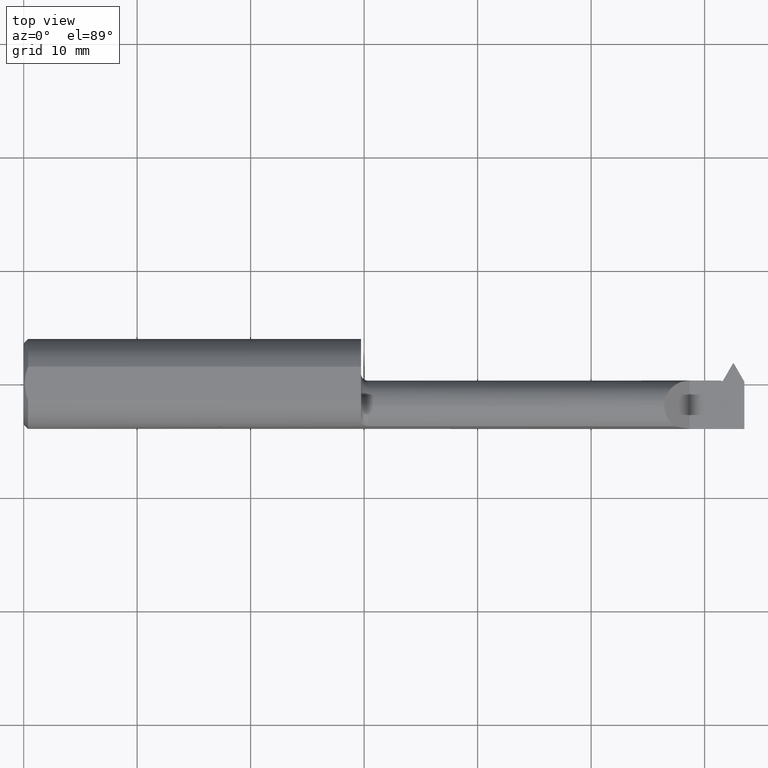
[diagram: clean part render]
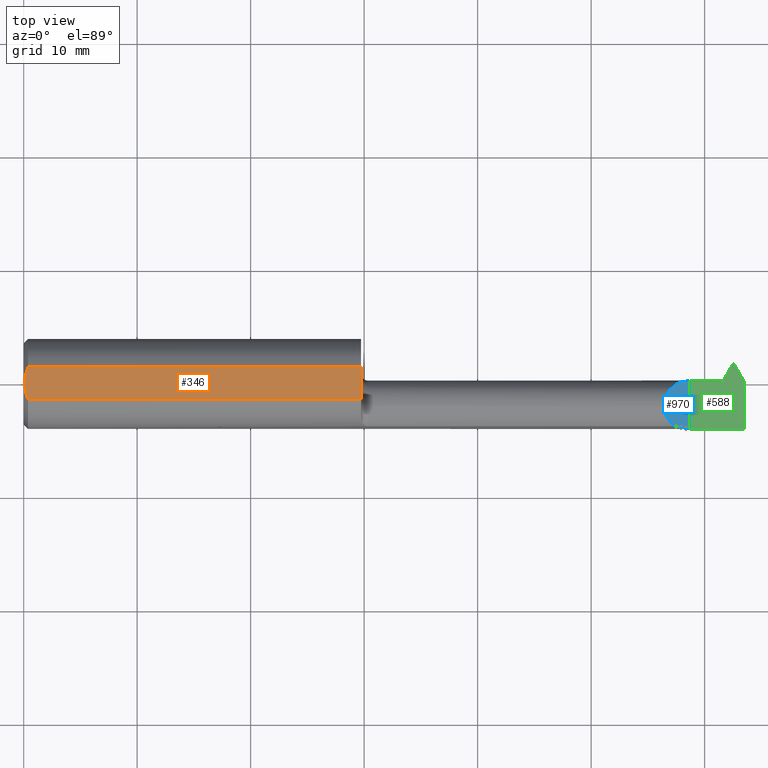
[diagram: same view with three faces highlighted in distinct colors, each labeled with its STEP entity id]
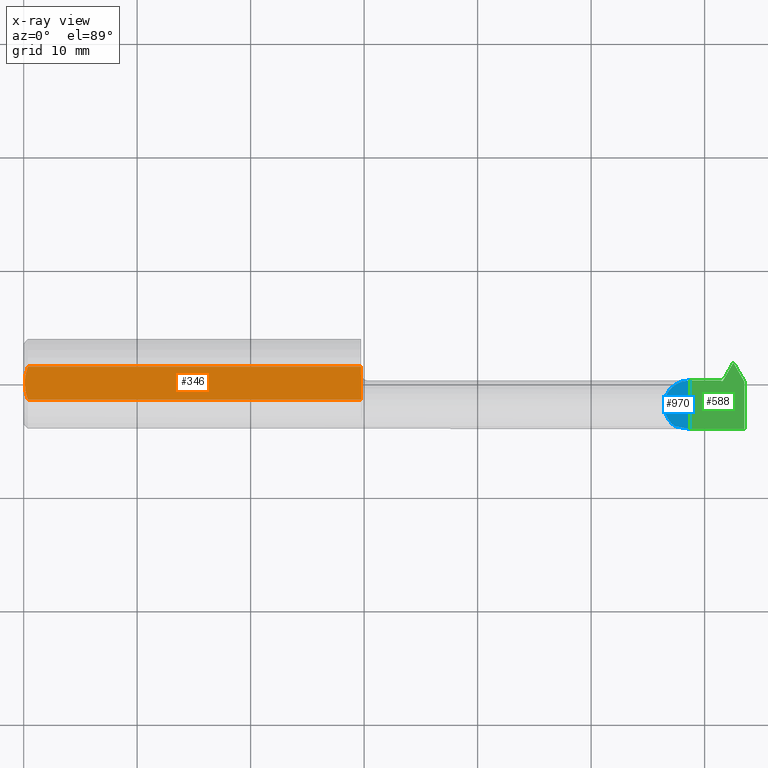
[diagram: x-ray of the same camera — body ghosted, the three highlighted faces saturated]
A machine part, top view with three faces highlighted in distinct colors.
The next image is the same camera in x-ray (body ghosted, the three faces saturated) — at least one of them is partly hidden behind the body in this view.
Their STEP definitions:

[orange] entity #346 — the highlighted planar face has unit normal (-0, 0, -1).
#8 = VERTEX_POINT ( 'NONE', #541 ) ;
#14 = EDGE_CURVE ( 'NONE', #8, #159, #742, .T. ) ;
#89 = ORIENTED_EDGE ( 'NONE', *, *, #14, .T. ) ;
#115 = VERTEX_POINT ( 'NONE', #795 ) ;
#135 = ORIENTED_EDGE ( 'NONE', *, *, #863, .F. ) ;
#138 = DIRECTION ( 'NONE',  ( 1.000000000000000000, 0.000000000000000000, 0.000000000000000000 ) ) ;
#154 = CARTESIAN_POINT ( 'NONE',  ( 0.003999999999999637526, 1.884449684559922719E-17, 0.1450999999999999512 ) ) ;
#159 = VERTEX_POINT ( 'NONE', #571 ) ;
#164 = EDGE_CURVE ( 'NONE', #911, #8, #662, .T. ) ;
#180 = VECTOR ( 'NONE', #504, 39.37007874015748143 ) ;
#197 = EDGE_CURVE ( 'NONE', #796, #115, #580, .T. ) ;
#233 = CARTESIAN_POINT ( 'NONE',  ( 0.01158831187866349310, 0.04830813087846574927, 0.1450999999999999235 ) ) ;
#253 = CARTESIAN_POINT ( 'NONE',  ( 0.000000000000000000, 0.1749999999999999889, 0.1450999999999999512 ) ) ;
#273 = CARTESIAN_POINT ( 'NONE',  ( 0.003999999999999592423, 0.009855731042683129120, 0.1450999999999999790 ) ) ;
#275 = VECTOR ( 'NONE', #725, 39.37007874015748143 ) ;
#296 = LINE ( 'NONE', #664, #180 ) ;
#315 = CARTESIAN_POINT ( 'NONE',  ( 0.005011318927232567486, -0.01959047621504285061, 0.1450999999999999512 ) ) ;
#325 = FACE_OUTER_BOUND ( 'NONE', #822, .T. ) ;
#346 = ADVANCED_FACE ( 'NONE', ( #325 ), #466, .F. ) ;
#365 = CARTESIAN_POINT ( 'NONE',  ( 0.01499999999999970281, 0.05756040305626781983, 0.1450999999999999512 ) ) ;
#381 = CARTESIAN_POINT ( 'NONE',  ( 0.003999999999999590689, -0.009851916903761231276, 0.1450999999999999235 ) ) ;
#402 = CARTESIAN_POINT ( 'NONE',  ( 1.170000000000000151, 0.05756040305626781289, 0.1450999999999999512 ) ) ;
#426 = ORIENTED_EDGE ( 'NONE', *, *, #197, .F. ) ;
#456 = CARTESIAN_POINT ( 'NONE',  ( 0.01499999999999970975, -0.05756040305626781983, 0.1450999999999999512 ) ) ;
#461 = CARTESIAN_POINT ( 'NONE',  ( 0.008818052469296599680, -0.03886761757380381710, 0.1450999999999999512 ) ) ;
#466 = PLANE ( 'NONE',  #720 ) ;
#467 = VECTOR ( 'NONE', #138, 39.37007874015748143 ) ;
#504 = DIRECTION ( 'NONE',  ( -1.000000000000000000, -0.000000000000000000, -0.000000000000000000 ) ) ;
#541 = CARTESIAN_POINT ( 'NONE',  ( 0.003999999999999637526, 1.884449684559922719E-17, 0.1450999999999999512 ) ) ;
#554 = DIRECTION ( 'NONE',  ( -0.000000000000000000, 0.000000000000000000, -1.000000000000000000 ) ) ;
#571 = CARTESIAN_POINT ( 'NONE',  ( 0.01499999999999970975, -0.05756040305626781983, 0.1450999999999999512 ) ) ;
#580 = LINE ( 'NONE', #880, #275 ) ;
#584 = LINE ( 'NONE', #737, #467 ) ;
#597 = ORIENTED_EDGE ( 'NONE', *, *, #937, .F. ) ;
#655 = CARTESIAN_POINT ( 'NONE',  ( 0.003999999999999637526, 1.884449684559922719E-17, 0.1450999999999999512 ) ) ;
#660 = CARTESIAN_POINT ( 'NONE',  ( 0.005030132703184393185, 0.01970541148932063516, 0.1450999999999999512 ) ) ;
#662 = B_SPLINE_CURVE_WITH_KNOTS ( 'NONE', 3,
 ( #688, #233, #884, #660, #273, #655 ),
 .UNSPECIFIED., .F., .F.,
 ( 4, 2, 4 ),
 ( 0.003161694502929457244, 0.003901142131335591512, 0.004640589759741725780 ),
 .UNSPECIFIED. ) ;
#664 = CARTESIAN_POINT ( 'NONE',  ( 2.500000000000000000, -0.05756040305626781983, 0.1450999999999999512 ) ) ;
#688 = CARTESIAN_POINT ( 'NONE',  ( 0.01499999999999970281, 0.05756040305626781983, 0.1450999999999999512 ) ) ;
#720 = AXIS2_PLACEMENT_3D ( 'NONE', #253, #554, #925 ) ;
#725 = DIRECTION ( 'NONE',  ( 0.000000000000000000, -1.000000000000000000, 0.000000000000000000 ) ) ;
#737 = CARTESIAN_POINT ( 'NONE',  ( 2.500000000000000000, 0.05756040305626781983, 0.1450999999999999512 ) ) ;
#742 = B_SPLINE_CURVE_WITH_KNOTS ( 'NONE', 3,
 ( #154, #381, #315, #461, #985, #456 ),
 .UNSPECIFIED., .F., .F.,
 ( 4, 2, 4 ),
 ( 0.004640589759741725780, 0.005379751224090827816, 0.006118912688439928985 ),
 .UNSPECIFIED. ) ;
#795 = CARTESIAN_POINT ( 'NONE',  ( 1.170000000000000151, -0.05756040305626783371, 0.1450999999999999512 ) ) ;
#796 = VERTEX_POINT ( 'NONE', #402 ) ;
#822 = EDGE_LOOP ( 'NONE', ( #426, #597, #902, #89, #135 ) ) ;
#863 = EDGE_CURVE ( 'NONE', #115, #159, #296, .T. ) ;
#880 = CARTESIAN_POINT ( 'NONE',  ( 1.170000000000000151, 0.1749999999999999889, 0.1450999999999999512 ) ) ;
#884 = CARTESIAN_POINT ( 'NONE',  ( 0.008823987512428013366, 0.03887788046871690911, 0.1450999999999999512 ) ) ;
#902 = ORIENTED_EDGE ( 'NONE', *, *, #164, .T. ) ;
#911 = VERTEX_POINT ( 'NONE', #365 ) ;
#925 = DIRECTION ( 'NONE',  ( -1.000000000000000000, 0.000000000000000000, 0.000000000000000000 ) ) ;
#937 = EDGE_CURVE ( 'NONE', #911, #796, #584, .T. ) ;
#985 = CARTESIAN_POINT ( 'NONE',  ( 0.01161840624095520323, -0.04838974479540041063, 0.1450999999999999790 ) ) ;

[blue] entity #970 — the highlighted planar face has unit normal (-0.7071, 0, -0.7071).
#11 = CARTESIAN_POINT ( 'NONE',  ( 2.165000000000000480, 0.1749999999999999889, 0.1450999999999999512 ) ) ;
#60 = ORIENTED_EDGE ( 'NONE', *, *, #738, .F. ) ;
#94 = VERTEX_POINT ( 'NONE', #179 ) ;
#118 = CARTESIAN_POINT ( 'NONE',  ( 2.222100000000000186, -0.02459722810174531579, 0.08800000000000000877 ) ) ;
#120 = CARTESIAN_POINT ( 'NONE',  ( 2.222100000000000186, -0.07609999999999990383, 0.08799999999999999489 ) ) ;
#172 = CARTESIAN_POINT ( 'NONE',  ( 2.310000000000000053, 0.01189994318180000350, 9.999999999973052634E-05 ) ) ;
#175 = CARTESIAN_POINT ( 'NONE',  ( 2.310000000000000053, 0.1749999999999999889, 9.999999999973052634E-05 ) ) ;
#179 = CARTESIAN_POINT ( 'NONE',  ( 2.258341905890882462, -0.1472695137976346991, 0.05175809410911749731 ) ) ;
#213 = PLANE ( 'NONE',  #734 ) ;
#239 = CARTESIAN_POINT ( 'NONE',  ( 2.258341905890882462, -0.1472695137976346991, 0.05175809410911749731 ) ) ;
#243 =( BOUNDED_CURVE ( )  B_SPLINE_CURVE ( 3, ( #120, #281, #730, #310 ),
 .UNSPECIFIED., .F., .T. ) 
 B_SPLINE_CURVE_WITH_KNOTS ( ( 4, 4 ),
 ( 0.000000000000000000, 0.9420143062005867929 ),
 .UNSPECIFIED. ) 
 CURVE ( )  GEOMETRIC_REPRESENTATION_ITEM ( )  RATIONAL_B_SPLINE_CURVE ( ( 1.000000000000000000, 0.9274078068410991360, 0.9274078068410991360, 1.000000000000000000 ) ) 
 REPRESENTATION_ITEM ( '' )  );
#254 = EDGE_CURVE ( 'NONE', #951, #94, #243, .T. ) ;
#271 =( BOUNDED_CURVE ( )  B_SPLINE_CURVE ( 3, ( #564, #867, #118, #359 ),
 .UNSPECIFIED., .F., .T. ) 
 B_SPLINE_CURVE_WITH_KNOTS ( ( 4, 4 ),
 ( 4.713525344265619310, 6.283185307179586232 ),
 .UNSPECIFIED. ) 
 CURVE ( )  GEOMETRIC_REPRESENTATION_ITEM ( )  RATIONAL_B_SPLINE_CURVE ( ( 1.000000000000000000, 0.8050056215533928361, 0.8050056215533928361, 1.000000000000000000 ) ) 
 REPRESENTATION_ITEM ( '' )  );
#274 = ORIENTED_EDGE ( 'NONE', *, *, #437, .T. ) ;
#281 = CARTESIAN_POINT ( 'NONE',  ( 2.222100000000000186, -0.1048058126387024641, 0.08800000000000002265 ) ) ;
#310 = CARTESIAN_POINT ( 'NONE',  ( 2.258341905890882462, -0.1472695137976346991, 0.05175809410911749731 ) ) ;
#359 = CARTESIAN_POINT ( 'NONE',  ( 2.222100000000000186, -0.07609999999999990383, 0.08799999999999999489 ) ) ;
#437 = EDGE_CURVE ( 'NONE', #778, #951, #271, .T. ) ;
#564 = CARTESIAN_POINT ( 'NONE',  ( 2.310000000000000053, 0.01189994318180000350, 9.999999999973052634E-05 ) ) ;
#606 = CARTESIAN_POINT ( 'NONE',  ( 2.310000000000000053, -0.1560999679692471886, 9.999999999973052634E-05 ) ) ;
#607 = VECTOR ( 'NONE', #620, 39.37007874015748143 ) ;
#617 = VERTEX_POINT ( 'NONE', #667 ) ;
#620 = DIRECTION ( 'NONE',  ( 0.000000000000000000, -1.000000000000000000, 0.000000000000000000 ) ) ;
#667 = CARTESIAN_POINT ( 'NONE',  ( 2.310000000000000053, -0.1560999679692471886, 9.999999999973052634E-05 ) ) ;
#681 = CARTESIAN_POINT ( 'NONE',  ( 2.222100000000000186, -0.07609999999999990383, 0.08799999999999999489 ) ) ;
#689 =( BOUNDED_CURVE ( )  B_SPLINE_CURVE ( 3, ( #606, #783, #853, #239 ),
 .UNSPECIFIED., .F., .F. ) 
 B_SPLINE_CURVE_WITH_KNOTS ( ( 4, 4 ),
 ( 4.713029595418895212, 5.050356325447889816 ),
 .UNSPECIFIED. ) 
 CURVE ( )  GEOMETRIC_REPRESENTATION_ITEM ( )  RATIONAL_B_SPLINE_CURVE ( ( 1.000000000000000000, 0.9905400143130563828, 0.9905400143130563828, 1.000000000000000000 ) ) 
 REPRESENTATION_ITEM ( '' )  );
#705 = EDGE_CURVE ( 'NONE', #778, #617, #857, .T. ) ;
#730 = CARTESIAN_POINT ( 'NONE',  ( 2.235126238519718367, -0.1303858984336271343, 0.07497376148028192522 ) ) ;
#734 = AXIS2_PLACEMENT_3D ( 'NONE', #11, #915, #785 ) ;
#738 = EDGE_CURVE ( 'NONE', #617, #94, #689, .T. ) ;
#748 = ORIENTED_EDGE ( 'NONE', *, *, #254, .T. ) ;
#778 = VERTEX_POINT ( 'NONE', #172 ) ;
#783 = CARTESIAN_POINT ( 'NONE',  ( 2.292364034161542108, -0.1560886701028428303, 0.01773596583845823624 ) ) ;
#785 = DIRECTION ( 'NONE',  ( -0.7071067811865461294, 0.000000000000000000, 0.7071067811865487940 ) ) ;
#824 = FACE_OUTER_BOUND ( 'NONE', #969, .T. ) ;
#835 = ORIENTED_EDGE ( 'NONE', *, *, #705, .F. ) ;
#853 = CARTESIAN_POINT ( 'NONE',  ( 2.274980218814131927, -0.1531170741235404198, 0.03511978118586850384 ) ) ;
#857 = LINE ( 'NONE', #175, #607 ) ;
#867 = CARTESIAN_POINT ( 'NONE',  ( 2.258497261355095542, 0.01184141730464296355, 0.05160273864490429879 ) ) ;
#915 = DIRECTION ( 'NONE',  ( -0.7071067811865489050, 0.000000000000000000, -0.7071067811865462405 ) ) ;
#951 = VERTEX_POINT ( 'NONE', #681 ) ;
#969 = EDGE_LOOP ( 'NONE', ( #835, #274, #748, #60 ) ) ;
#970 = ADVANCED_FACE ( 'NONE', ( #824 ), #213, .F. ) ;

[green] entity #588 — the highlighted planar face has unit normal (-0, 0, -1).
#34 = DIRECTION ( 'NONE',  ( -0.000000000000000000, 1.000000000000000000, -0.000000000000000000 ) ) ;
#54 = DIRECTION ( 'NONE',  ( -1.000000000000000000, -4.337237490962486732E-15, 0.000000000000000000 ) ) ;
#56 = EDGE_CURVE ( 'NONE', #506, #326, #174, .T. ) ;
#58 = DIRECTION ( 'NONE',  ( -0.000000000000000000, 1.000000000000000000, -0.000000000000000000 ) ) ;
#62 = EDGE_CURVE ( 'NONE', #320, #422, #717, .T. ) ;
#75 = ORIENTED_EDGE ( 'NONE', *, *, #283, .F. ) ;
#88 = ORIENTED_EDGE ( 'NONE', *, *, #266, .F. ) ;
#97 = CARTESIAN_POINT ( 'NONE',  ( 2.419954283310243426, 0.01190000000000008412, 0.000000000000000000 ) ) ;
#142 = CARTESIAN_POINT ( 'NONE',  ( 2.310000000000000053, 0.01190000000000008412, -3.979970649922725226E-17 ) ) ;
#143 = DIRECTION ( 'NONE',  ( 1.000000000000000000, 0.000000000000000000, 0.000000000000000000 ) ) ;
#174 = LINE ( 'NONE', #555, #490 ) ;
#202 = CARTESIAN_POINT ( 'NONE',  ( 2.310000000000000053, 0.1749999999999999889, -3.979970649922725226E-17 ) ) ;
#207 = DIRECTION ( 'NONE',  ( -1.000000000000000000, -0.000000000000000000, -0.000000000000000000 ) ) ;
#224 = VECTOR ( 'NONE', #872, 39.37007874015748143 ) ;
#266 = EDGE_CURVE ( 'NONE', #818, #522, #682, .T. ) ;
#283 = EDGE_CURVE ( 'NONE', #422, #818, #360, .T. ) ;
#284 = CARTESIAN_POINT ( 'NONE',  ( 2.310000000000000053, 0.1749999999999999889, -3.979970649922725226E-17 ) ) ;
#295 = PLANE ( 'NONE',  #605 ) ;
#302 = CARTESIAN_POINT ( 'NONE',  ( 2.424954283310243763, 0.009900000000000085815, 0.000000000000000000 ) ) ;
#320 = VERTEX_POINT ( 'NONE', #97 ) ;
#326 = VERTEX_POINT ( 'NONE', #478 ) ;
#341 = LINE ( 'NONE', #414, #671 ) ;
#350 = CARTESIAN_POINT ( 'NONE',  ( 2.419954283310243426, 0.009900000000000085815, 0.000000000000000000 ) ) ;
#360 = LINE ( 'NONE', #302, #957 ) ;
#369 = FACE_OUTER_BOUND ( 'NONE', #704, .T. ) ;
#389 = CARTESIAN_POINT ( 'NONE',  ( 2.463249999999999940, 0.07190000000000019986, 0.000000000000000000 ) ) ;
#390 = VECTOR ( 'NONE', #58, 39.37007874015748143 ) ;
#405 = VECTOR ( 'NONE', #982, 39.37007874015748854 ) ;
#414 = CARTESIAN_POINT ( 'NONE',  ( 2.462000000000000188, 0.07406506350946080730, 0.000000000000000000 ) ) ;
#422 = VERTEX_POINT ( 'NONE', #350 ) ;
#478 = CARTESIAN_POINT ( 'NONE',  ( 2.500000000000000000, 0.008247132821843725786, 0.000000000000000000 ) ) ;
#490 = VECTOR ( 'NONE', #34, 39.37007874015748143 ) ;
#506 = VERTEX_POINT ( 'NONE', #724 ) ;
#510 = EDGE_CURVE ( 'NONE', #760, #326, #341, .T. ) ;
#522 = VERTEX_POINT ( 'NONE', #980 ) ;
#528 = LINE ( 'NONE', #741, #875 ) ;
#555 = CARTESIAN_POINT ( 'NONE',  ( 2.500000000000000000, 0.1749999999999999889, -3.979970649922725226E-17 ) ) ;
#576 = EDGE_CURVE ( 'NONE', #760, #522, #736, .T. ) ;
#581 = ORIENTED_EDGE ( 'NONE', *, *, #628, .F. ) ;
#583 = LINE ( 'NONE', #756, #733 ) ;
#588 = ADVANCED_FACE ( 'NONE', ( #369 ), #295, .F. ) ;
#600 = DIRECTION ( 'NONE',  ( 1.000000000000000000, -0.000000000000000000, -0.000000000000000000 ) ) ;
#605 = AXIS2_PLACEMENT_3D ( 'NONE', #284, #744, #740 ) ;
#619 = EDGE_CURVE ( 'NONE', #506, #746, #583, .T. ) ;
#628 = EDGE_CURVE ( 'NONE', #746, #665, #663, .T. ) ;
#629 = CARTESIAN_POINT ( 'NONE',  ( 2.419954283310243426, 0.009900000000000085815, 0.000000000000000000 ) ) ;
#648 = CARTESIAN_POINT ( 'NONE',  ( 2.424954283310243763, 0.009900000000000085815, 0.000000000000000000 ) ) ;
#663 = LINE ( 'NONE', #202, #390 ) ;
#665 = VERTEX_POINT ( 'NONE', #142 ) ;
#671 = VECTOR ( 'NONE', #719, 39.37007874015748143 ) ;
#682 = LINE ( 'NONE', #648, #405 ) ;
#691 = ORIENTED_EDGE ( 'NONE', *, *, #619, .F. ) ;
#698 = ORIENTED_EDGE ( 'NONE', *, *, #576, .T. ) ;
#704 = EDGE_LOOP ( 'NONE', ( #723, #922, #698, #88, #75, #767, #979, #581, #691 ) ) ;
#717 = LINE ( 'NONE', #629, #224 ) ;
#719 = DIRECTION ( 'NONE',  ( 0.5000000000000012212, -0.8660254037844379305, 0.000000000000000000 ) ) ;
#723 = ORIENTED_EDGE ( 'NONE', *, *, #56, .T. ) ;
#724 = CARTESIAN_POINT ( 'NONE',  ( 2.500000000000000000, -0.1560999999999999333, -3.979970649922725226E-17 ) ) ;
#733 = VECTOR ( 'NONE', #207, 39.37007874015748143 ) ;
#736 = LINE ( 'NONE', #903, #908 ) ;
#740 = DIRECTION ( 'NONE',  ( -1.000000000000000000, 0.000000000000000000, 0.000000000000000000 ) ) ;
#741 = CARTESIAN_POINT ( 'NONE',  ( 1.170000000000000151, 0.01190000000000008412, -3.979970649922725226E-17 ) ) ;
#744 = DIRECTION ( 'NONE',  ( -0.000000000000000000, 0.000000000000000000, -1.000000000000000000 ) ) ;
#746 = VERTEX_POINT ( 'NONE', #763 ) ;
#751 = CARTESIAN_POINT ( 'NONE',  ( 2.424954283310243763, 0.009900000000000085815, 0.000000000000000000 ) ) ;
#756 = CARTESIAN_POINT ( 'NONE',  ( 2.500000000000000000, -0.1560999999999999888, -3.979970649922725226E-17 ) ) ;
#760 = VERTEX_POINT ( 'NONE', #389 ) ;
#763 = CARTESIAN_POINT ( 'NONE',  ( 2.310000000000000053, -0.1560999999999999888, -3.979970649922725226E-17 ) ) ;
#767 = ORIENTED_EDGE ( 'NONE', *, *, #62, .F. ) ;
#818 = VERTEX_POINT ( 'NONE', #751 ) ;
#830 = EDGE_CURVE ( 'NONE', #665, #320, #528, .T. ) ;
#872 = DIRECTION ( 'NONE',  ( -0.000000000000000000, -1.000000000000000000, -0.000000000000000000 ) ) ;
#875 = VECTOR ( 'NONE', #143, 39.37007874015748143 ) ;
#903 = CARTESIAN_POINT ( 'NONE',  ( 2.310000000000000941, 0.07189999999999953373, -3.979970649922725226E-17 ) ) ;
#908 = VECTOR ( 'NONE', #54, 39.37007874015748143 ) ;
#922 = ORIENTED_EDGE ( 'NONE', *, *, #510, .F. ) ;
#957 = VECTOR ( 'NONE', #600, 39.37007874015748143 ) ;
#979 = ORIENTED_EDGE ( 'NONE', *, *, #830, .F. ) ;
#980 = CARTESIAN_POINT ( 'NONE',  ( 2.460750000000000437, 0.07190000000000018598, -3.979970649922725226E-17 ) ) ;
#982 = DIRECTION ( 'NONE',  ( 0.4999999999999994449, 0.8660254037844390407, 0.000000000000000000 ) ) ;